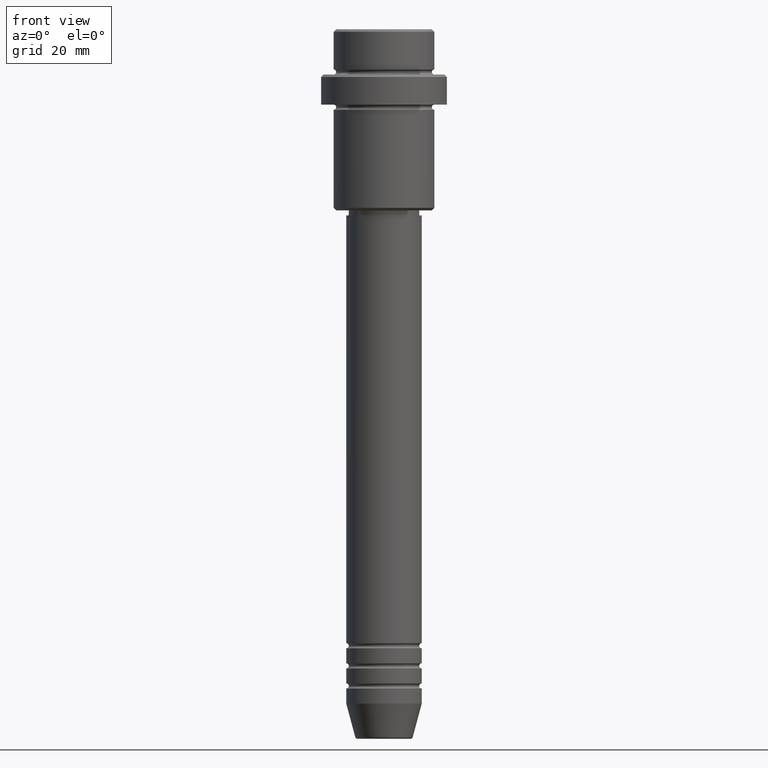
[diagram: clean part render]
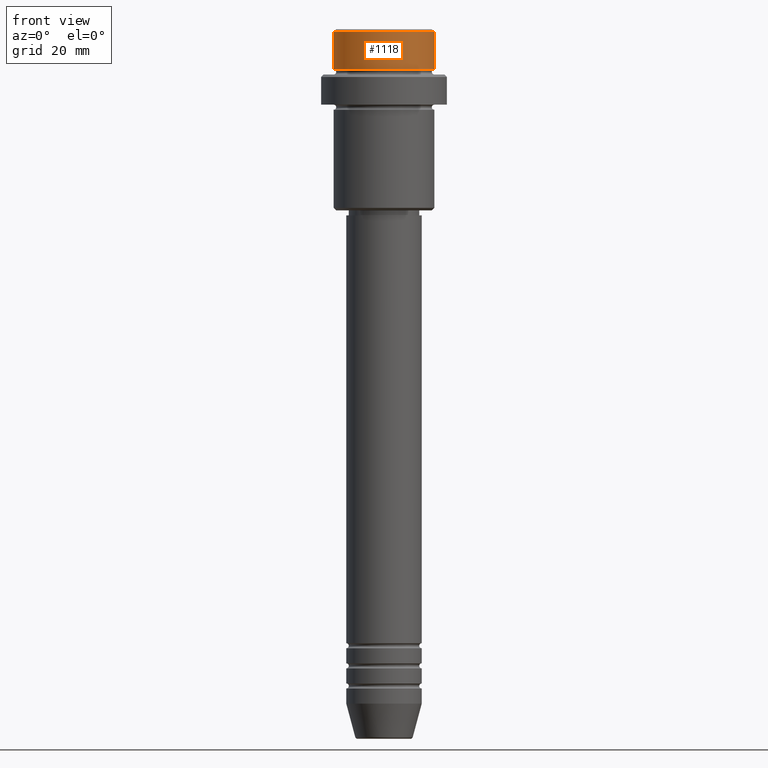
[diagram: same view with one face highlighted and labeled with its STEP entity id]
A machine part, front view. The second image highlights one B-rep face of the part: STEP entity #1118.
In plain terms, the highlighted cylindrical surface (partial cylindrical patch) has radius 10 mm, axis along (-0, -0, 1).
Its self-contained STEP definition (entity closure, byte-faithful):
#28 = DIRECTION ( 'NONE',  ( 0.000000000000000000, 0.000000000000000000, -1.000000000000000000 ) ) ;
#44 = CARTESIAN_POINT ( 'NONE',  ( -9.999999999999998224, 1.224646799147353059E-15, -0.4999999999999831246 ) ) ;
#118 = EDGE_CURVE ( 'NONE', #774, #1201, #126, .T. ) ;
#121 = CARTESIAN_POINT ( 'NONE',  ( 9.999999999999998224, 0.000000000000000000, -7.999999999999998224 ) ) ;
#126 = CIRCLE ( 'NONE', #1269, 9.999999999999998224 ) ;
#173 = VERTEX_POINT ( 'NONE', #1365 ) ;
#296 = CARTESIAN_POINT ( 'NONE',  ( 0.000000000000000000, 0.000000000000000000, 0.000000000000000000 ) ) ;
#377 = DIRECTION ( 'NONE',  ( 1.000000000000000000, 0.000000000000000000, 0.000000000000000000 ) ) ;
#418 = FACE_OUTER_BOUND ( 'NONE', #1343, .T. ) ;
#438 = EDGE_CURVE ( 'NONE', #173, #728, #452, .T. ) ;
#452 = CIRCLE ( 'NONE', #1019, 9.999999999999998224 ) ;
#468 = EDGE_CURVE ( 'NONE', #728, #774, #919, .T. ) ;
#476 = DIRECTION ( 'NONE',  ( 1.000000000000000000, 0.000000000000000000, 0.000000000000000000 ) ) ;
#574 = ORIENTED_EDGE ( 'NONE', *, *, #468, .T. ) ;
#602 = EDGE_CURVE ( 'NONE', #173, #1201, #942, .T. ) ;
#626 = ORIENTED_EDGE ( 'NONE', *, *, #438, .T. ) ;
#658 = VECTOR ( 'NONE', #948, 1000.000000000000000 ) ;
#728 = VERTEX_POINT ( 'NONE', #121 ) ;
#736 = CYLINDRICAL_SURFACE ( 'NONE', #1116, 9.999999999999998224 ) ;
#774 = VERTEX_POINT ( 'NONE', #1089 ) ;
#779 = CARTESIAN_POINT ( 'NONE',  ( 0.000000000000000000, 0.000000000000000000, -0.4999999999999831246 ) ) ;
#812 = DIRECTION ( 'NONE',  ( -0.000000000000000000, -0.000000000000000000, 1.000000000000000000 ) ) ;
#852 = DIRECTION ( 'NONE',  ( -0.000000000000000000, -0.000000000000000000, 1.000000000000000000 ) ) ;
#919 = LINE ( 'NONE', #1353, #1406 ) ;
#942 = LINE ( 'NONE', #962, #658 ) ;
#948 = DIRECTION ( 'NONE',  ( -0.000000000000000000, -0.000000000000000000, 1.000000000000000000 ) ) ;
#962 = CARTESIAN_POINT ( 'NONE',  ( -9.999999999999998224, 1.224646799147353059E-15, 0.000000000000000000 ) ) ;
#1019 = AXIS2_PLACEMENT_3D ( 'NONE', #1339, #1256, #377 ) ;
#1089 = CARTESIAN_POINT ( 'NONE',  ( 9.999999999999998224, 0.000000000000000000, -0.4999999999999831246 ) ) ;
#1116 = AXIS2_PLACEMENT_3D ( 'NONE', #296, #852, #1376 ) ;
#1118 = ADVANCED_FACE ( 'NONE', ( #418 ), #736, .T. ) ;
#1167 = ORIENTED_EDGE ( 'NONE', *, *, #118, .T. ) ;
#1201 = VERTEX_POINT ( 'NONE', #44 ) ;
#1256 = DIRECTION ( 'NONE',  ( -0.000000000000000000, -0.000000000000000000, 1.000000000000000000 ) ) ;
#1269 = AXIS2_PLACEMENT_3D ( 'NONE', #779, #28, #476 ) ;
#1322 = ORIENTED_EDGE ( 'NONE', *, *, #602, .F. ) ;
#1339 = CARTESIAN_POINT ( 'NONE',  ( 0.000000000000000000, 0.000000000000000000, -7.999999999999998224 ) ) ;
#1343 = EDGE_LOOP ( 'NONE', ( #1322, #626, #574, #1167 ) ) ;
#1353 = CARTESIAN_POINT ( 'NONE',  ( 9.999999999999998224, 0.000000000000000000, 0.000000000000000000 ) ) ;
#1365 = CARTESIAN_POINT ( 'NONE',  ( -9.999999999999998224, 1.224646799147353059E-15, -7.999999999999998224 ) ) ;
#1376 = DIRECTION ( 'NONE',  ( 1.000000000000000000, 0.000000000000000000, 0.000000000000000000 ) ) ;
#1406 = VECTOR ( 'NONE', #812, 1000.000000000000000 ) ;